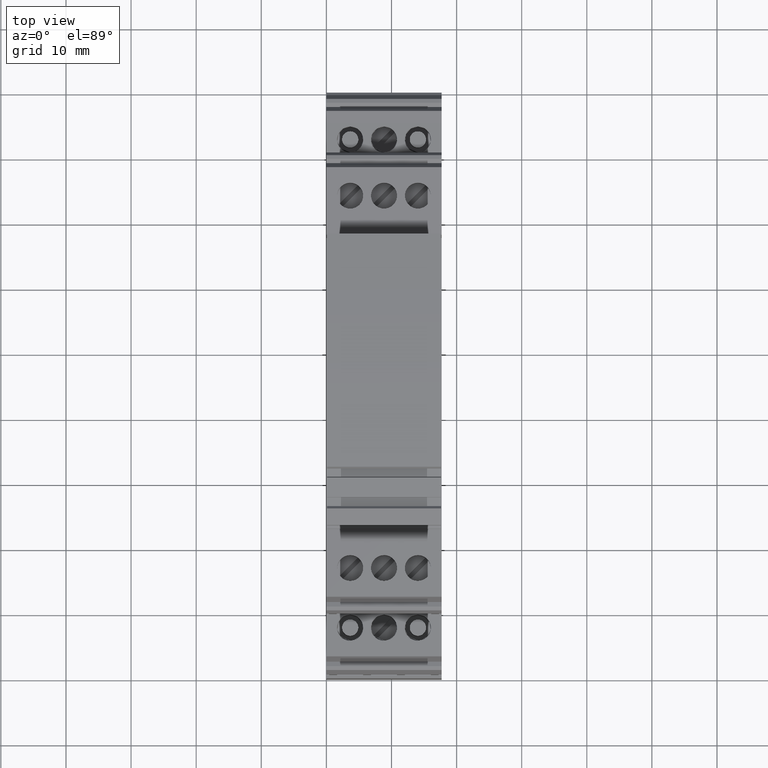
[diagram: clean part render]
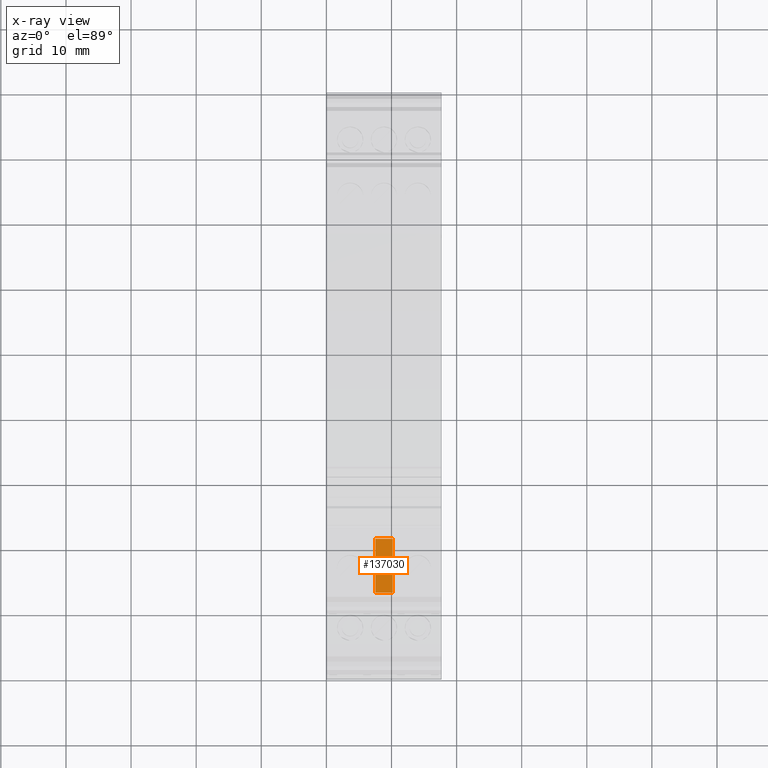
[diagram: x-ray — body ghosted, one internal face saturated and labeled with its STEP entity id]
A machine part, top view, then the same camera in x-ray: the body is ghosted and one INTERNAL B-rep face — a face not visible from any outside direction — is saturated and labeled: STEP entity #137030.
In plain terms, the highlighted planar face has unit normal (-0, -0, -1).
Its self-contained STEP definition (entity closure, byte-faithful):
#136310=CARTESIAN_POINT('',(93.2413512606416,47.0062740524438,
-31.7595517602489));
#136320=DIRECTION('',(-1.22464679914735E-16,4.73413691270791E-32,1.));
#136330=VECTOR('',#136320,1.);
#136340=LINE('',#136310,#136330);
#136350=CARTESIAN_POINT('',(93.2413512606416,47.0062740524438,
-41.959551760249));
#136360=VERTEX_POINT('',#136350);
#136370=CARTESIAN_POINT('',(93.2413512606416,47.0062740524438,
-39.259551760249));
#136380=VERTEX_POINT('',#136370);
#136390=EDGE_CURVE('',#136360,#136380,#136340,.T.);
#136730=CARTESIAN_POINT('',(104.277994184171,47.0062740524438,
-39.259551760249));
#136740=DIRECTION('',(1.20996962449382E-16,-1.,0.));
#136750=DIRECTION('',(0.,0.,1.));
#136760=AXIS2_PLACEMENT_3D('',#136730,#136740,#136750);
#136770=PLANE('',#136760);
#136780=CARTESIAN_POINT('',(-5.32740216385719E-8,47.0062740524438,
-41.9595517602489));
#136790=DIRECTION('',(-1.,-1.20996962449382E-16,0.));
#136800=VECTOR('',#136790,1.);
#136810=LINE('',#136780,#136800);
#136820=CARTESIAN_POINT('',(101.537994184171,47.0062740524438,
-41.9595517602489));
#136830=VERTEX_POINT('',#136820);
#136840=EDGE_CURVE('',#136830,#136360,#136810,.T.);
#136850=ORIENTED_EDGE('',*,*,#136840,.F.);
#136860=ORIENTED_EDGE('',*,*,#136390,.F.);
#136870=CARTESIAN_POINT('',(-5.32740216385719E-8,47.0062740524438,
-39.259551760249));
#136880=DIRECTION('',(-1.,-1.20996962449382E-16,0.));
#136890=VECTOR('',#136880,1.);
#136900=LINE('',#136870,#136890);
#136910=CARTESIAN_POINT('',(101.537994184171,47.0062740524438,
-39.259551760249));
#136920=VERTEX_POINT('',#136910);
#136930=EDGE_CURVE('',#136920,#136380,#136900,.T.);
#136940=ORIENTED_EDGE('',*,*,#136930,.T.);
#136950=CARTESIAN_POINT('',(101.537994184171,47.0062740524438,
-40.609551760249));
#136960=DIRECTION('',(0.,0.,1.));
#136970=VECTOR('',#136960,1.);
#136980=LINE('',#136950,#136970);
#136990=EDGE_CURVE('',#136830,#136920,#136980,.T.);
#137000=ORIENTED_EDGE('',*,*,#136990,.T.);
#137010=EDGE_LOOP('',(#137000,#136940,#136860,#136850));
#137020=FACE_OUTER_BOUND('',#137010,.T.);
#137030=ADVANCED_FACE('',(#137020),#136770,.T.);